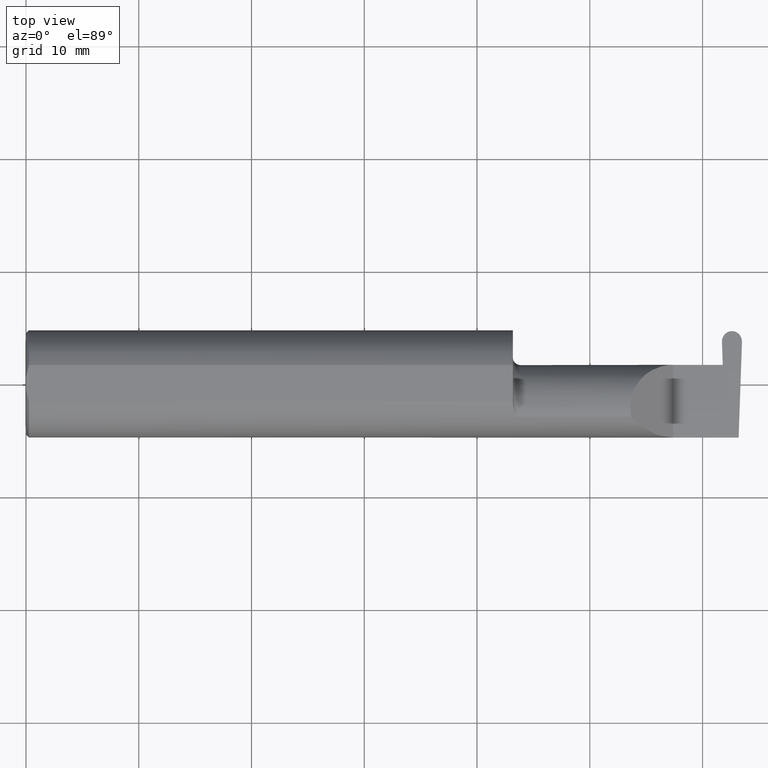
[diagram: clean part render]
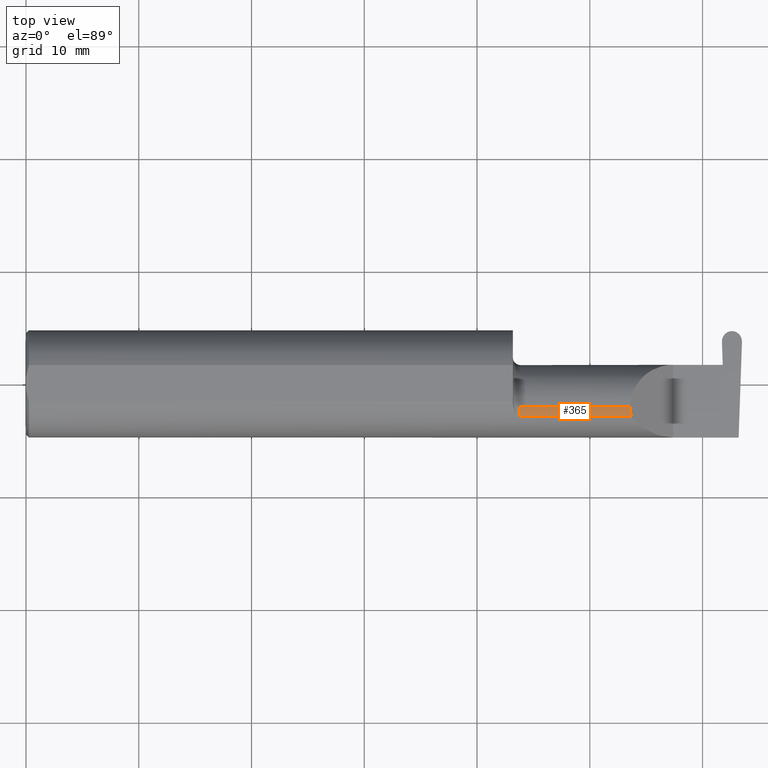
[diagram: same view with one face highlighted and labeled with its STEP entity id]
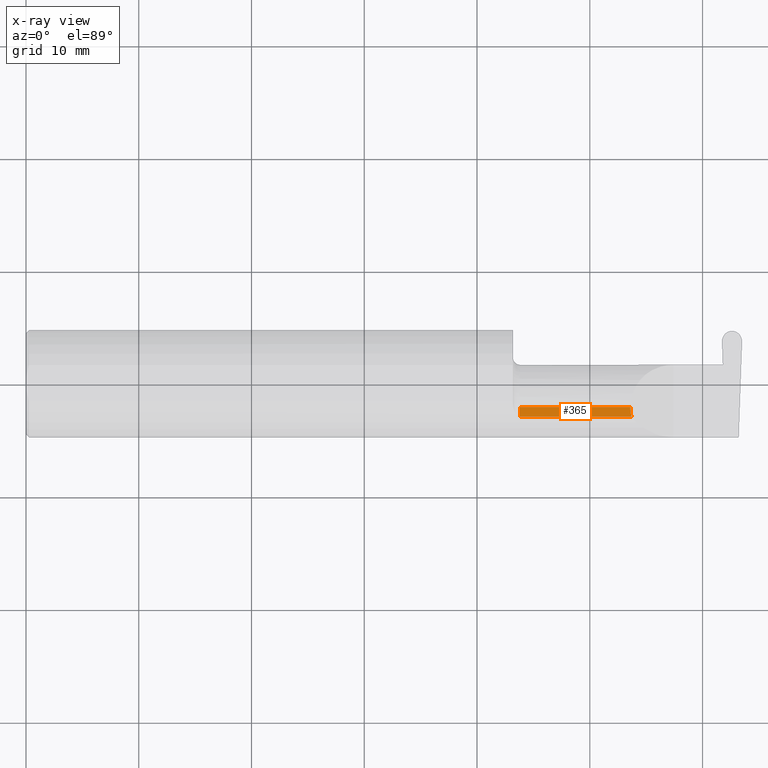
[diagram: x-ray of the same camera — body ghosted, the highlighted face saturated]
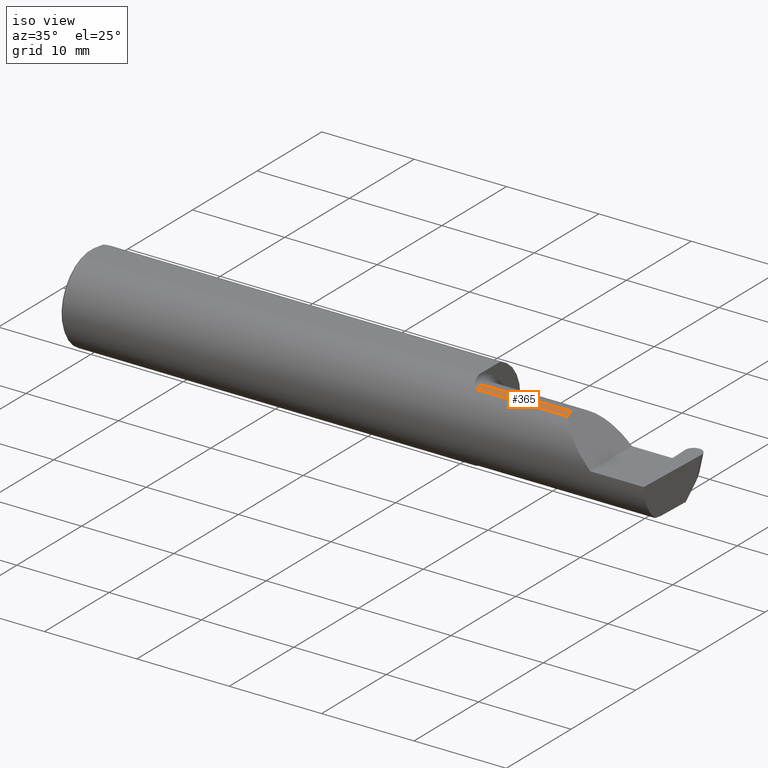
[diagram: same view with one face highlighted and labeled with its STEP entity id]
A machine part, top view. The second image highlights one B-rep face of the part: STEP entity #365.
The next image is the same camera in x-ray: the body ghosted, the highlighted face saturated — about 0% of this face is hidden behind the body in this view.
A second angle (iso view) of the same face is appended — the face is thin or edge-on in the first view.
In plain terms, the highlighted cylindrical surface (partial cylindrical patch) has radius 3.81 mm, axis along (-1, -0, -0).
Its self-contained STEP definition (entity closure, byte-faithful):
#4 = CARTESIAN_POINT ( 'NONE',  ( 2.113883229301068312, -0.1172600179964008171, 0.1461167706989301707 ) ) ;
#35 = AXIS2_PLACEMENT_3D ( 'NONE', #315, #498, #140 ) ;
#56 =( BOUNDED_CURVE ( )  B_SPLINE_CURVE ( 3, ( #280, #343, #665, #466 ),
 .UNSPECIFIED., .F., .F. ) 
 B_SPLINE_CURVE_WITH_KNOTS ( ( 4, 4 ),
 ( 6.055147272130141367, 6.283185307179586232 ),
 .UNSPECIFIED. ) 
 CURVE ( )  GEOMETRIC_REPRESENTATION_ITEM ( )  RATIONAL_B_SPLINE_CURVE ( ( 1.000000000000000000, 0.9956712472009929815, 0.9956712472009929815, 1.000000000000000000 ) ) 
 REPRESENTATION_ITEM ( '' )  );
#78 = EDGE_CURVE ( 'NONE', #805, #495, #553, .T. ) ;
#109 = EDGE_LOOP ( 'NONE', ( #375, #589, #385, #574 ) ) ;
#140 = DIRECTION ( 'NONE',  ( 0.000000000000000000, 0.000000000000000000, 1.000000000000000000 ) ) ;
#152 = DIRECTION ( 'NONE',  ( -1.000000000000000000, -0.000000000000000000, -0.000000000000000000 ) ) ;
#178 = VERTEX_POINT ( 'NONE', #747 ) ;
#180 = DIRECTION ( 'NONE',  ( 1.000000000000000000, 0.000000000000000000, 0.000000000000000000 ) ) ;
#212 = CARTESIAN_POINT ( 'NONE',  ( 1.699999999999999956, -0.08334999999999999354, 0.1499999999999999944 ) ) ;
#280 = CARTESIAN_POINT ( 'NONE',  ( 2.113883229301068312, -0.1172600179964008171, 0.1461167706989301707 ) ) ;
#315 = CARTESIAN_POINT ( 'NONE',  ( 1.724999999999999867, -0.08334999999999999354, 0.000000000000000000 ) ) ;
#343 = CARTESIAN_POINT ( 'NONE',  ( 2.111300037307153765, -0.1061291577212410409, 0.1486999626928446061 ) ) ;
#365 = ADVANCED_FACE ( 'NONE', ( #588 ), #673, .T. ) ;
#370 = CARTESIAN_POINT ( 'NONE',  ( 2.077422719999999945, -0.1172600179964006784, 0.1461167706989303650 ) ) ;
#375 = ORIENTED_EDGE ( 'NONE', *, *, #698, .T. ) ;
#385 = ORIENTED_EDGE ( 'NONE', *, *, #617, .F. ) ;
#411 = CARTESIAN_POINT ( 'NONE',  ( 1.699999999999999956, -0.08334999999999999354, 0.000000000000000000 ) ) ;
#466 = CARTESIAN_POINT ( 'NONE',  ( 2.109999999999998987, -0.08334999999999999354, 0.1499999999999999944 ) ) ;
#485 = VECTOR ( 'NONE', #180, 39.37007874015748143 ) ;
#495 = VERTEX_POINT ( 'NONE', #4 ) ;
#498 = DIRECTION ( 'NONE',  ( -1.000000000000000000, -0.000000000000000000, -0.000000000000000000 ) ) ;
#553 = LINE ( 'NONE', #370, #485 ) ;
#568 = AXIS2_PLACEMENT_3D ( 'NONE', #411, #152, #789 ) ;
#574 = ORIENTED_EDGE ( 'NONE', *, *, #78, .T. ) ;
#587 = CARTESIAN_POINT ( 'NONE',  ( 1.724999999999999867, -0.1172600179964006645, 0.1461167706989303372 ) ) ;
#588 = FACE_OUTER_BOUND ( 'NONE', #109, .T. ) ;
#589 = ORIENTED_EDGE ( 'NONE', *, *, #685, .T. ) ;
#617 = EDGE_CURVE ( 'NONE', #805, #674, #763, .T. ) ;
#665 = CARTESIAN_POINT ( 'NONE',  ( 2.109999999999998543, -0.09477667630339427218, 0.1499999999999999667 ) ) ;
#673 = CYLINDRICAL_SURFACE ( 'NONE', #568, 0.1499999999999999944 ) ;
#674 = VERTEX_POINT ( 'NONE', #728 ) ;
#685 = EDGE_CURVE ( 'NONE', #178, #674, #788, .T. ) ;
#698 = EDGE_CURVE ( 'NONE', #495, #178, #56, .T. ) ;
#722 = VECTOR ( 'NONE', #737, 39.37007874015748143 ) ;
#728 = CARTESIAN_POINT ( 'NONE',  ( 1.724999999999999867, -0.08334999999999999354, 0.1499999999999999944 ) ) ;
#737 = DIRECTION ( 'NONE',  ( -1.000000000000000000, -0.000000000000000000, -0.000000000000000000 ) ) ;
#747 = CARTESIAN_POINT ( 'NONE',  ( 2.109999999999998987, -0.08334999999999999354, 0.1499999999999999944 ) ) ;
#763 = CIRCLE ( 'NONE', #35, 0.1499999999999999944 ) ;
#788 = LINE ( 'NONE', #212, #722 ) ;
#789 = DIRECTION ( 'NONE',  ( 0.000000000000000000, 0.000000000000000000, 1.000000000000000000 ) ) ;
#805 = VERTEX_POINT ( 'NONE', #587 ) ;